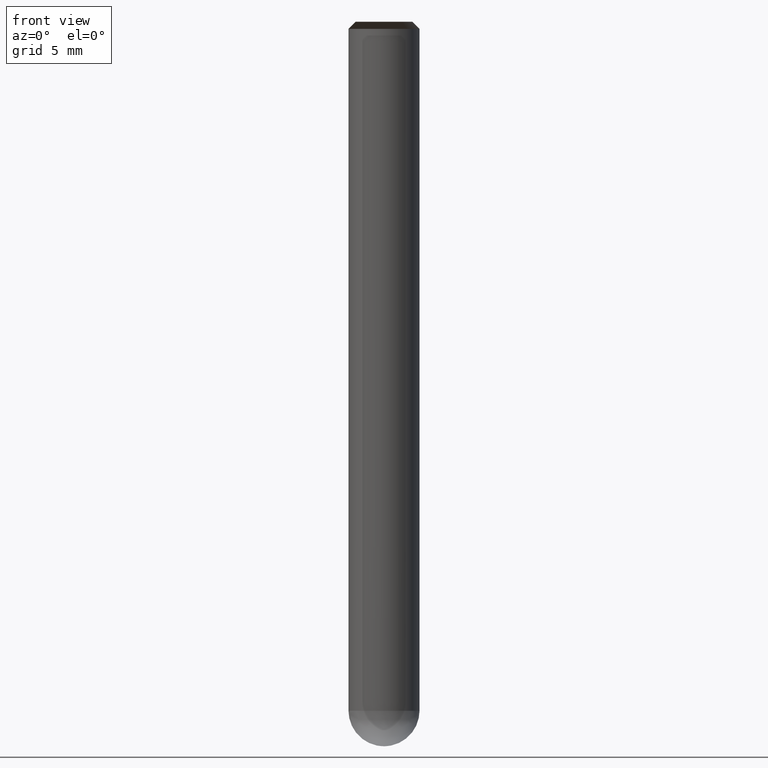
[diagram: clean part render]
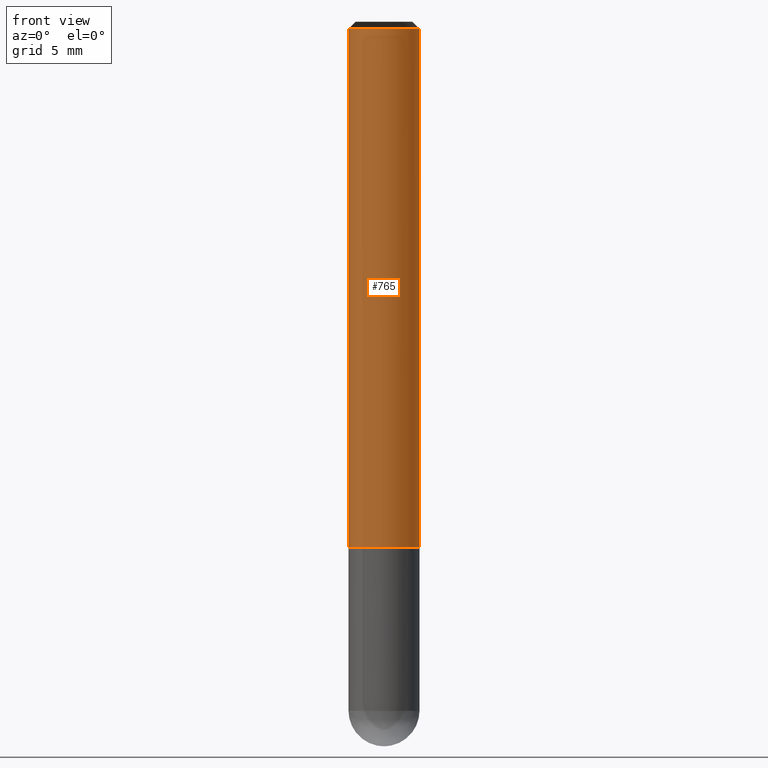
[diagram: same view with one face highlighted and labeled with its STEP entity id]
A machine part, front view. The second image highlights one B-rep face of the part: STEP entity #765.
In plain terms, the highlighted face is a freeform B-spline surface patch.
Its self-contained STEP definition (entity closure, byte-faithful):
#479=CARTESIAN_POINT('',(2.5,0.0,0.0));
#483=CARTESIAN_POINT('',(-2.5,0.0,0.0));
#484=CARTESIAN_POINT('',(2.5,0.0,36.5));
#488=CARTESIAN_POINT('',(-2.5,0.0,36.5));
#495=CARTESIAN_POINT('',(-2.5,-2.5,0.0));
#496=CARTESIAN_POINT('',(0.0,-2.5,0.0));
#497=CARTESIAN_POINT('',(2.5,-2.5,0.0));
#498=CARTESIAN_POINT('',(-2.5,-2.5,36.5));
#499=CARTESIAN_POINT('',(0.0,-2.5,36.5));
#500=CARTESIAN_POINT('',(2.5,-2.5,36.5));
#746=(
BOUNDED_SURFACE()
B_SPLINE_SURFACE(1,2,(
(#483,#495,#496,#497,#479),
(#488,#498,#499,#500,#484)
), .UNSPECIFIED.,.F.,.F.,.F.)
B_SPLINE_SURFACE_WITH_KNOTS((2,2),(3,2,3),(
0.0,1.0),(
0.0,0.5,1.0), .UNSPECIFIED.)
GEOMETRIC_REPRESENTATION_ITEM()
RATIONAL_B_SPLINE_SURFACE(((1.0,0.707106781187,1.0,0.707106781187,1.0),
(1.0,0.707106781187,1.0,0.707106781187,1.0)
))
REPRESENTATION_ITEM('')
SURFACE()
);
#747=(
BOUNDED_CURVE()
B_SPLINE_CURVE(2,(#479,#497,#496,#495,#483),.UNSPECIFIED.,.F.,.F.)
B_SPLINE_CURVE_WITH_KNOTS((3,2,3),
(0.0,0.5,1.0),.UNSPECIFIED.)
CURVE()
GEOMETRIC_REPRESENTATION_ITEM()
RATIONAL_B_SPLINE_CURVE((1.0,0.707106781187,1.0,0.707106781187,1.0))
REPRESENTATION_ITEM('')
);
#748=(
BOUNDED_CURVE()
B_SPLINE_CURVE(1,(#483,#488),.UNSPECIFIED.,.F.,.F.)
B_SPLINE_CURVE_WITH_KNOTS((2,2),
(0.0,1.0),.UNSPECIFIED.)
CURVE()
GEOMETRIC_REPRESENTATION_ITEM()
RATIONAL_B_SPLINE_CURVE((1.0,1.0))
REPRESENTATION_ITEM('')
);
#749=(
BOUNDED_CURVE()
B_SPLINE_CURVE(2,(#488,#498,#499,#500,#484),.UNSPECIFIED.,.F.,.F.)
B_SPLINE_CURVE_WITH_KNOTS((3,2,3),
(0.0,0.5,1.0),.UNSPECIFIED.)
CURVE()
GEOMETRIC_REPRESENTATION_ITEM()
RATIONAL_B_SPLINE_CURVE((1.0,0.707106781187,1.0,0.707106781187,1.0))
REPRESENTATION_ITEM('')
);
#750=(
BOUNDED_CURVE()
B_SPLINE_CURVE(1,(#484,#479),.UNSPECIFIED.,.F.,.F.)
B_SPLINE_CURVE_WITH_KNOTS((2,2),
(0.0,1.0),.UNSPECIFIED.)
CURVE()
GEOMETRIC_REPRESENTATION_ITEM()
RATIONAL_B_SPLINE_CURVE((1.0,1.0))
REPRESENTATION_ITEM('')
);
#751=VERTEX_POINT('',#479);
#752=VERTEX_POINT('',#483);
#753=VERTEX_POINT('',#484);
#754=VERTEX_POINT('',#488);
#755=EDGE_CURVE('',#751,#752,#747,.T.);
#756=EDGE_CURVE('',#752,#754,#748,.T.);
#757=EDGE_CURVE('',#754,#753,#749,.T.);
#758=EDGE_CURVE('',#753,#751,#750,.T.);
#759=ORIENTED_EDGE('',*,*,#755,.T.);
#760=ORIENTED_EDGE('',*,*,#756,.T.);
#761=ORIENTED_EDGE('',*,*,#757,.T.);
#762=ORIENTED_EDGE('',*,*,#758,.T.);
#763=EDGE_LOOP('',(#759,#760,#761,#762));
#764=FACE_OUTER_BOUND('',#763,.T.);
#765=ADVANCED_FACE('',(#764),#746,.T.);